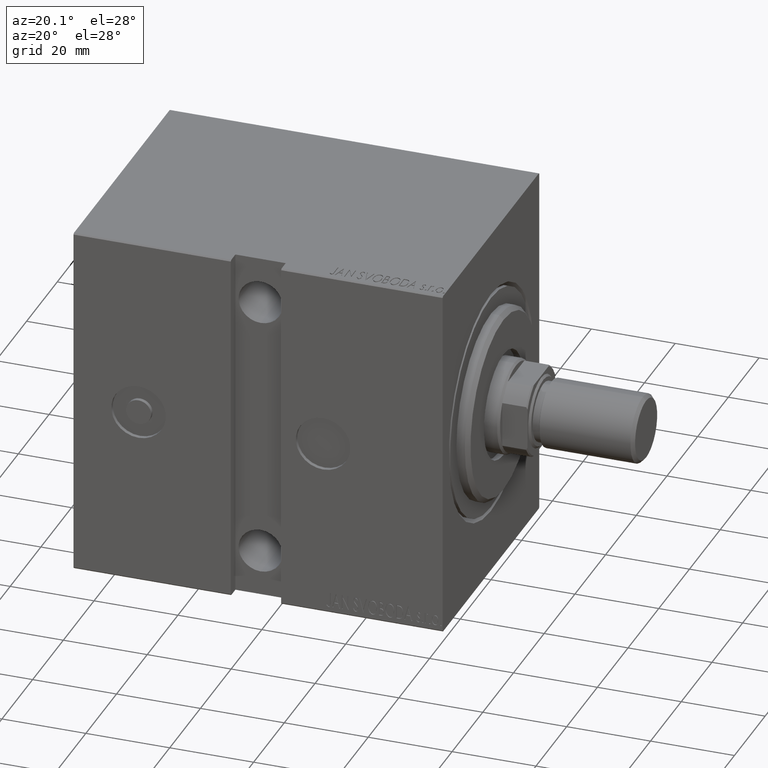
[diagram: clean part render]
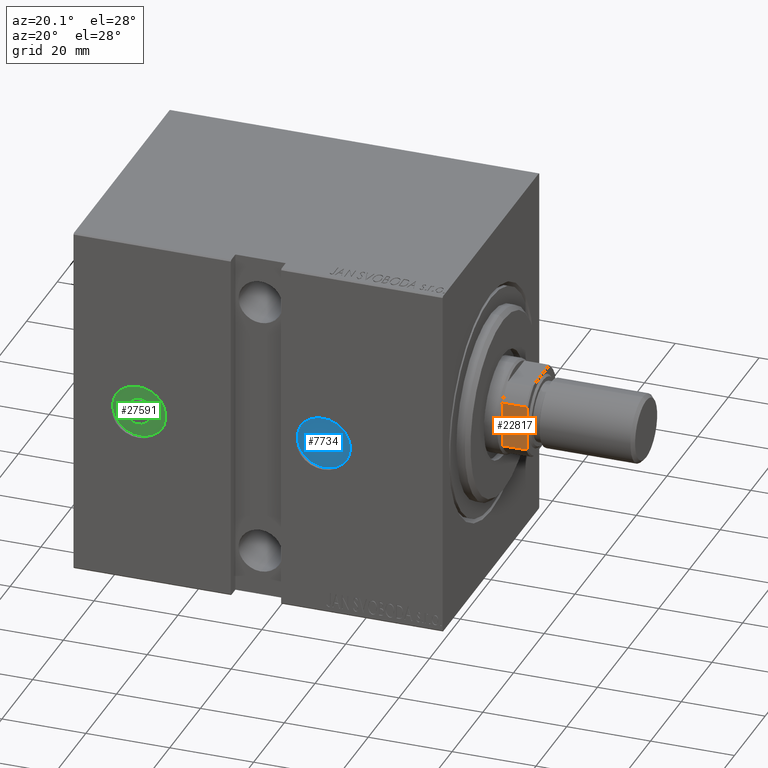
[diagram: same view with three faces highlighted in distinct colors, each labeled with its STEP entity id]
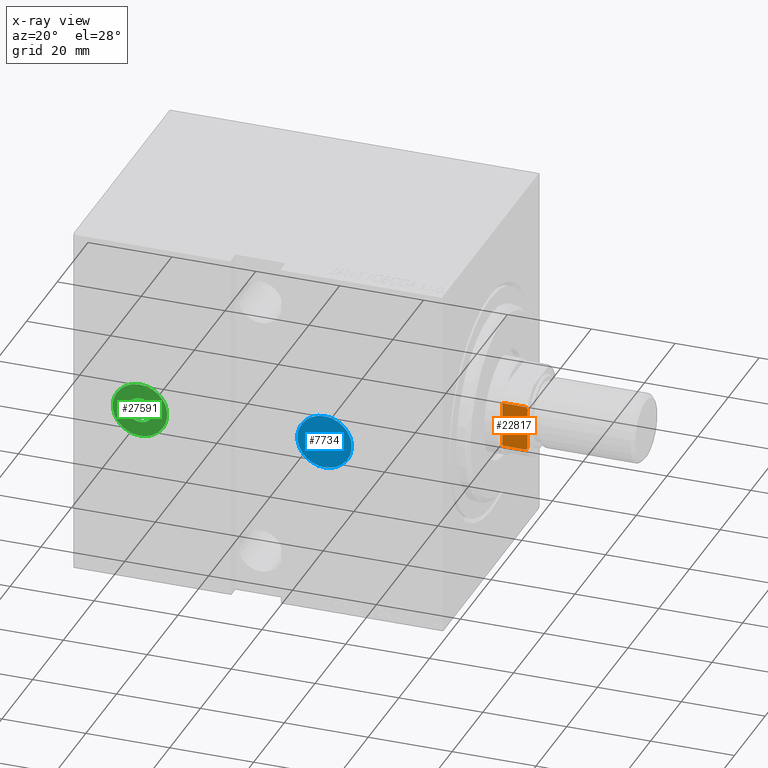
[diagram: x-ray of the same camera — body ghosted, the three highlighted faces saturated]
A machine part, auxiliary view with three faces highlighted in distinct colors.
The next image is the same camera in x-ray (body ghosted, the three faces saturated) — at least one of them is partly hidden behind the body in this view.
Their STEP definitions:

[orange] entity #22817 — the highlighted planar face has unit normal (0, 1, 0).
#448 = PLANE ( 'NONE',  #6225 ) ;
#886 = CARTESIAN_POINT ( 'NONE',  ( -8.999999999999998224, -9.000000000000001776, 88.00000000000000000 ) ) ;
#2596 = VECTOR ( 'NONE', #26071, 1000.000000000000000 ) ;
#2661 = EDGE_CURVE ( 'NONE', #37415, #40526, #37913, .T. ) ;
#3052 = VERTEX_POINT ( 'NONE', #16066 ) ;
#3507 = FACE_OUTER_BOUND ( 'NONE', #37356, .T. ) ;
#3718 = CARTESIAN_POINT ( 'NONE',  ( 5.207299490555466370, -8.999999999999998224, 87.80354495430066208 ) ) ;
#3723 = DIRECTION ( 'NONE',  ( 0.000000000000000000, 1.000000000000000000, 0.000000000000000000 ) ) ;
#3909 = CARTESIAN_POINT ( 'NONE',  ( -5.004607318780272429, -9.000000000000001776, 87.90371420292690630 ) ) ;
#4582 = EDGE_CURVE ( 'NONE', #40526, #33181, #10229, .T. ) ;
#5656 = EDGE_CURVE ( 'NONE', #30383, #33181, #22465, .T. ) ;
#5900 = ORIENTED_EDGE ( 'NONE', *, *, #17161, .F. ) ;
#6225 = AXIS2_PLACEMENT_3D ( 'NONE', #886, #3723, #14169 ) ;
#6673 = CARTESIAN_POINT ( 'NONE',  ( -5.408326913195988794, -8.999999999999998224, -0.001000000000001000089 ) ) ;
#10229 = B_SPLINE_CURVE_WITH_KNOTS ( 'NONE', 3,
 ( #33551, #3718, #20479, #33770 ),
 .UNSPECIFIED., .F., .F.,
 ( 4, 4 ),
 ( 0.000000000000000000, 0.0006782784334759612210 ),
 .UNSPECIFIED. ) ;
#10431 = CARTESIAN_POINT ( 'NONE',  ( -4.799999999999956302, -9.000000000000001776, 88.00000000000000000 ) ) ;
#10649 = CARTESIAN_POINT ( 'NONE',  ( 5.408326913195988794, -8.999999999999998224, 87.69999999999997442 ) ) ;
#10940 = VERTEX_POINT ( 'NONE', #34412 ) ;
#12786 = LINE ( 'NONE', #6673, #2596 ) ;
#13914 = CARTESIAN_POINT ( 'NONE',  ( -5.408326913195988794, -8.999999999999998224, 87.69999999999997442 ) ) ;
#14169 = DIRECTION ( 'NONE',  ( 0.000000000000000000, -0.000000000000000000, 1.000000000000000000 ) ) ;
#14791 = CARTESIAN_POINT ( 'NONE',  ( 5.408326913195988794, -8.999999999999998224, 81.99999999999997158 ) ) ;
#15304 = ORIENTED_EDGE ( 'NONE', *, *, #5656, .F. ) ;
#16066 = CARTESIAN_POINT ( 'NONE',  ( -5.408326913195988794, -8.999999999999998224, 81.99999999999997158 ) ) ;
#17161 = EDGE_CURVE ( 'NONE', #3052, #10940, #12786, .T. ) ;
#17177 = CARTESIAN_POINT ( 'NONE',  ( -5.207299490555458377, -9.000000000000001776, 87.80354495430066208 ) ) ;
#17575 = CARTESIAN_POINT ( 'NONE',  ( 4.799999999999974065, -9.000000000000001776, 88.00000000000000000 ) ) ;
#17730 = ORIENTED_EDGE ( 'NONE', *, *, #22374, .T. ) ;
#19580 = B_SPLINE_CURVE_WITH_KNOTS ( 'NONE', 3,
 ( #10431, #3909, #17177, #13914 ),
 .UNSPECIFIED., .F., .F.,
 ( 4, 4 ),
 ( 0.000000000000000000, 0.0006782784334759783514 ),
 .UNSPECIFIED. ) ;
#20479 = CARTESIAN_POINT ( 'NONE',  ( 5.004607318780291081, -9.000000000000001776, 87.90371420292690630 ) ) ;
#22374 = EDGE_CURVE ( 'NONE', #30383, #10940, #19580, .T. ) ;
#22465 = LINE ( 'NONE', #42711, #29979 ) ;
#22817 = ADVANCED_FACE ( 'NONE', ( #3507 ), #448, .F. ) ;
#23257 = ORIENTED_EDGE ( 'NONE', *, *, #4582, .T. ) ;
#25238 = EDGE_CURVE ( 'NONE', #3052, #37415, #26718, .T. ) ;
#26071 = DIRECTION ( 'NONE',  ( -0.000000000000000000, -0.000000000000000000, 1.000000000000000000 ) ) ;
#26169 = DIRECTION ( 'NONE',  ( 1.000000000000000000, 0.000000000000000000, 0.000000000000000000 ) ) ;
#26718 = LINE ( 'NONE', #30415, #38939 ) ;
#28528 = ORIENTED_EDGE ( 'NONE', *, *, #25238, .T. ) ;
#28763 = DIRECTION ( 'NONE',  ( -0.000000000000000000, -0.000000000000000000, 1.000000000000000000 ) ) ;
#29979 = VECTOR ( 'NONE', #26169, 1000.000000000000000 ) ;
#30383 = VERTEX_POINT ( 'NONE', #41151 ) ;
#30415 = CARTESIAN_POINT ( 'NONE',  ( -8.999999999999998224, -9.000000000000001776, 81.99999999999998579 ) ) ;
#30602 = VECTOR ( 'NONE', #28763, 1000.000000000000000 ) ;
#31488 = DIRECTION ( 'NONE',  ( 1.000000000000000000, 0.000000000000000000, 0.000000000000000000 ) ) ;
#33181 = VERTEX_POINT ( 'NONE', #17575 ) ;
#33551 = CARTESIAN_POINT ( 'NONE',  ( 5.408326913195988794, -8.999999999999998224, 87.69999999999997442 ) ) ;
#33770 = CARTESIAN_POINT ( 'NONE',  ( 4.799999999999974065, -9.000000000000001776, 88.00000000000000000 ) ) ;
#34412 = CARTESIAN_POINT ( 'NONE',  ( -5.408326913195988794, -8.999999999999998224, 87.69999999999997442 ) ) ;
#35286 = CARTESIAN_POINT ( 'NONE',  ( 5.408326913195988794, -8.999999999999998224, -0.001000000000001000089 ) ) ;
#37356 = EDGE_LOOP ( 'NONE', ( #40259, #23257, #15304, #17730, #5900, #28528 ) ) ;
#37415 = VERTEX_POINT ( 'NONE', #14791 ) ;
#37913 = LINE ( 'NONE', #35286, #30602 ) ;
#38939 = VECTOR ( 'NONE', #31488, 1000.000000000000000 ) ;
#40259 = ORIENTED_EDGE ( 'NONE', *, *, #2661, .T. ) ;
#40526 = VERTEX_POINT ( 'NONE', #10649 ) ;
#41151 = CARTESIAN_POINT ( 'NONE',  ( -4.799999999999956302, -9.000000000000001776, 88.00000000000000000 ) ) ;
#42711 = CARTESIAN_POINT ( 'NONE',  ( -8.999999999999998224, -9.000000000000001776, 88.00000000000000000 ) ) ;

[blue] entity #7734 — the highlighted planar face has unit normal (-0, -1, 0).
#2264 = CARTESIAN_POINT ( 'NONE',  ( 28.50000000000000000, 30.50000000000000711, -6.499999999999992006 ) ) ;
#2281 = AXIS2_PLACEMENT_3D ( 'NONE', #7718, #7500, #31235 ) ;
#7500 = DIRECTION ( 'NONE',  ( 1.232595164407830946E-32, 1.000000000000000000, 1.521170865648563045E-16 ) ) ;
#7718 = CARTESIAN_POINT ( 'NONE',  ( 28.50000000000000000, 30.50000000000000711, 5.016783186140414067E-15 ) ) ;
#7734 = ADVANCED_FACE ( 'NONE', ( #33049 ), #26076, .T. ) ;
#8170 = DIRECTION ( 'NONE',  ( 1.232595164407830946E-32, 1.000000000000000000, 1.521170865648563045E-16 ) ) ;
#9846 = EDGE_CURVE ( 'NONE', #36714, #9919, #30801, .T. ) ;
#9919 = VERTEX_POINT ( 'NONE', #2264 ) ;
#12443 = EDGE_CURVE ( 'NONE', #9919, #36714, #38455, .T. ) ;
#13638 = DIRECTION ( 'NONE',  ( 1.232595164407830946E-32, 1.000000000000000000, 1.521170865648563045E-16 ) ) ;
#15112 = CARTESIAN_POINT ( 'NONE',  ( 28.50000000000000000, 30.50000000000000711, 6.500000000000002665 ) ) ;
#19695 = AXIS2_PLACEMENT_3D ( 'NONE', #38850, #8170, #28851 ) ;
#25159 = AXIS2_PLACEMENT_3D ( 'NONE', #39342, #13638, #26284 ) ;
#26076 = PLANE ( 'NONE',  #25159 ) ;
#26284 = DIRECTION ( 'NONE',  ( 0.000000000000000000, -1.521170865648563045E-16, 1.000000000000000000 ) ) ;
#26570 = ORIENTED_EDGE ( 'NONE', *, *, #12443, .T. ) ;
#28477 = ORIENTED_EDGE ( 'NONE', *, *, #9846, .T. ) ;
#28851 = DIRECTION ( 'NONE',  ( 0.000000000000000000, 0.000000000000000000, 1.000000000000000000 ) ) ;
#30801 = CIRCLE ( 'NONE', #2281, 6.499999999999997335 ) ;
#31235 = DIRECTION ( 'NONE',  ( 0.000000000000000000, 0.000000000000000000, 1.000000000000000000 ) ) ;
#33049 = FACE_OUTER_BOUND ( 'NONE', #35623, .T. ) ;
#35623 = EDGE_LOOP ( 'NONE', ( #28477, #26570 ) ) ;
#36714 = VERTEX_POINT ( 'NONE', #15112 ) ;
#38455 = CIRCLE ( 'NONE', #19695, 6.499999999999997335 ) ;
#38850 = CARTESIAN_POINT ( 'NONE',  ( 28.50000000000000000, 30.50000000000000711, 5.016783186140414067E-15 ) ) ;
#39342 = CARTESIAN_POINT ( 'NONE',  ( 3.882674767884668356E-31, 30.50000000000000711, 4.665526519449206804E-15 ) ) ;

[green] entity #27591 — the highlighted planar face has unit normal (-0, -1, 0).
#1277 = DIRECTION ( 'NONE',  ( 0.000000000000000000, 0.000000000000000000, 1.000000000000000000 ) ) ;
#1719 = AXIS2_PLACEMENT_3D ( 'NONE', #4095, #17583, #27817 ) ;
#2467 = DIRECTION ( 'NONE',  ( 1.232595164407830946E-32, 1.000000000000000000, 1.521170865648563045E-16 ) ) ;
#4095 = CARTESIAN_POINT ( 'NONE',  ( 72.50000000000001421, 30.50000000000000711, 5.016783186140413278E-15 ) ) ;
#4974 = EDGE_LOOP ( 'NONE', ( #31326, #9223 ) ) ;
#5717 = CARTESIAN_POINT ( 'NONE',  ( 72.50000000000001421, 30.50000000000000711, 5.016783186140414067E-15 ) ) ;
#6214 = PLANE ( 'NONE',  #22311 ) ;
#8036 = DIRECTION ( 'NONE',  ( 1.232595164407830946E-32, 1.000000000000000000, 1.521170865648563045E-16 ) ) ;
#8622 = DIRECTION ( 'NONE',  ( 0.000000000000000000, -1.521170865648563045E-16, 1.000000000000000000 ) ) ;
#9223 = ORIENTED_EDGE ( 'NONE', *, *, #35405, .T. ) ;
#11363 = AXIS2_PLACEMENT_3D ( 'NONE', #31118, #8036, #1277 ) ;
#13127 = ORIENTED_EDGE ( 'NONE', *, *, #42972, .F. ) ;
#13385 = VERTEX_POINT ( 'NONE', #15538 ) ;
#13439 = EDGE_LOOP ( 'NONE', ( #13127, #20838 ) ) ;
#14205 = CARTESIAN_POINT ( 'NONE',  ( 72.50000000000001421, 30.50000000000000711, 5.016783186140413278E-15 ) ) ;
#14846 = CIRCLE ( 'NONE', #11363, 6.500000000000001776 ) ;
#15538 = CARTESIAN_POINT ( 'NONE',  ( 72.50000000000001421, 30.50000000000000711, 3.000000000000012879 ) ) ;
#15737 = DIRECTION ( 'NONE',  ( 0.000000000000000000, 0.000000000000000000, 1.000000000000000000 ) ) ;
#17583 = DIRECTION ( 'NONE',  ( 1.232595164407830946E-32, 1.000000000000000000, 1.521170865648563045E-16 ) ) ;
#19341 = CIRCLE ( 'NONE', #29755, 3.000000000000007994 ) ;
#19415 = EDGE_CURVE ( 'NONE', #30725, #13385, #19341, .T. ) ;
#19497 = CARTESIAN_POINT ( 'NONE',  ( 3.882674767884668356E-31, 30.50000000000000711, 4.665526519449206804E-15 ) ) ;
#20092 = AXIS2_PLACEMENT_3D ( 'NONE', #5717, #2467, #15737 ) ;
#20838 = ORIENTED_EDGE ( 'NONE', *, *, #19415, .F. ) ;
#21866 = CIRCLE ( 'NONE', #1719, 3.000000000000007994 ) ;
#21888 = EDGE_CURVE ( 'NONE', #37511, #37035, #22154, .T. ) ;
#22154 = CIRCLE ( 'NONE', #20092, 6.500000000000001776 ) ;
#22311 = AXIS2_PLACEMENT_3D ( 'NONE', #19497, #38443, #8622 ) ;
#24211 = DIRECTION ( 'NONE',  ( 1.232595164407830946E-32, 1.000000000000000000, 1.521170865648563045E-16 ) ) ;
#25506 = DIRECTION ( 'NONE',  ( 0.000000000000000000, 0.000000000000000000, 1.000000000000000000 ) ) ;
#27591 = ADVANCED_FACE ( 'NONE', ( #28647, #36043 ), #6214, .T. ) ;
#27817 = DIRECTION ( 'NONE',  ( 0.000000000000000000, 0.000000000000000000, 1.000000000000000000 ) ) ;
#28647 = FACE_BOUND ( 'NONE', #13439, .T. ) ;
#29755 = AXIS2_PLACEMENT_3D ( 'NONE', #14205, #24211, #25506 ) ;
#30725 = VERTEX_POINT ( 'NONE', #38482 ) ;
#31118 = CARTESIAN_POINT ( 'NONE',  ( 72.50000000000001421, 30.50000000000000711, 5.016783186140414067E-15 ) ) ;
#31326 = ORIENTED_EDGE ( 'NONE', *, *, #21888, .T. ) ;
#34027 = CARTESIAN_POINT ( 'NONE',  ( 72.50000000000001421, 30.50000000000000711, -6.499999999999996447 ) ) ;
#35405 = EDGE_CURVE ( 'NONE', #37035, #37511, #14846, .T. ) ;
#36043 = FACE_OUTER_BOUND ( 'NONE', #4974, .T. ) ;
#37035 = VERTEX_POINT ( 'NONE', #34027 ) ;
#37511 = VERTEX_POINT ( 'NONE', #41994 ) ;
#38443 = DIRECTION ( 'NONE',  ( 1.232595164407830946E-32, 1.000000000000000000, 1.521170865648563045E-16 ) ) ;
#38482 = CARTESIAN_POINT ( 'NONE',  ( 72.50000000000001421, 30.50000000000000711, -3.000000000000002665 ) ) ;
#41994 = CARTESIAN_POINT ( 'NONE',  ( 72.50000000000001421, 30.50000000000000711, 6.500000000000006217 ) ) ;
#42972 = EDGE_CURVE ( 'NONE', #13385, #30725, #21866, .T. ) ;